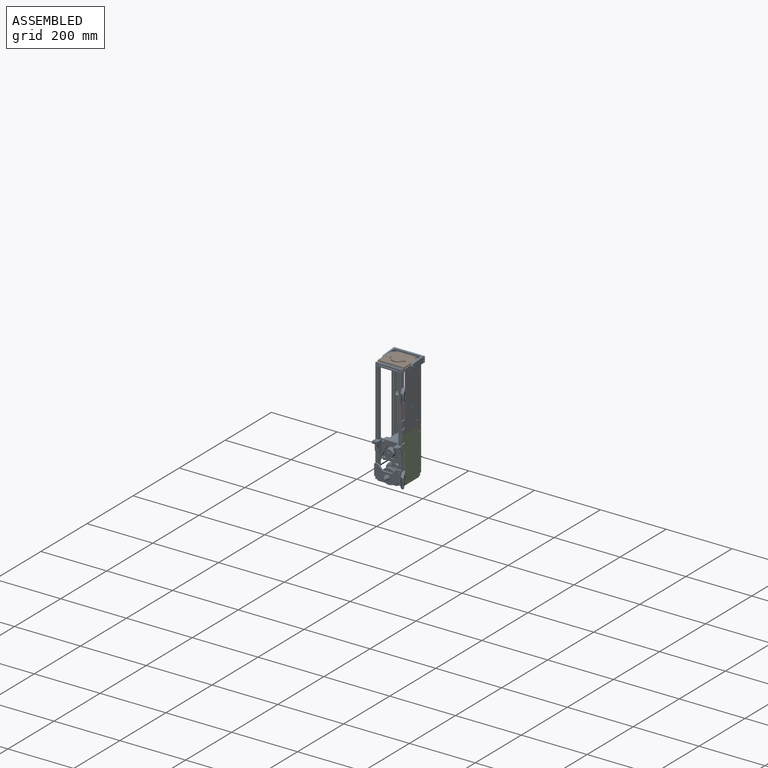
[diagram: assembled view]
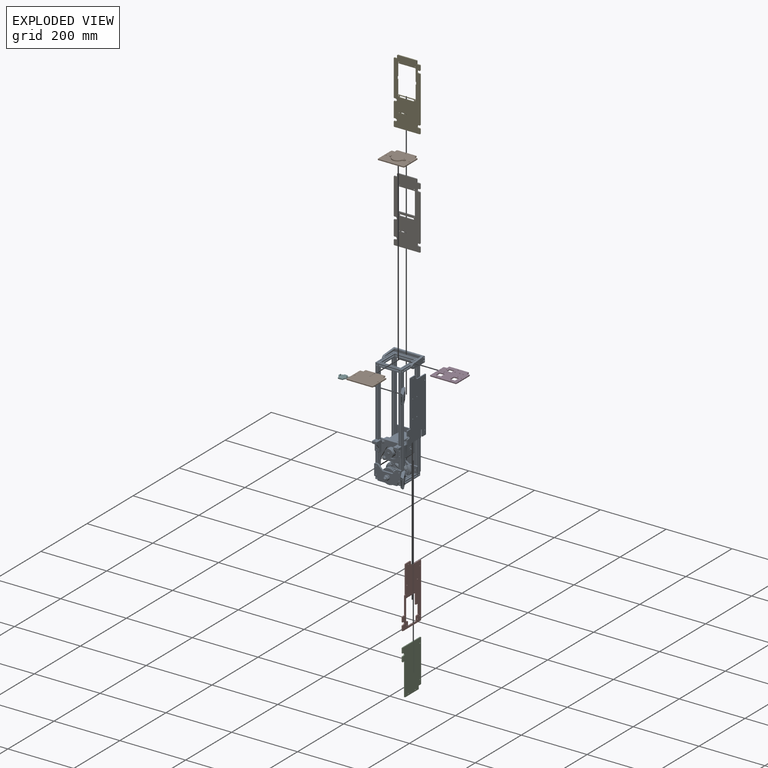
[diagram: exploded view]
GUIDED TOUR — FREECAD ASSEMBLY "colonne-moteur"

This assembly has 10 components, labeled P0..P9 below (a component is one placed body or linked part; the same part can appear more than once), held together by 0 modeled joints plus 35 derived contact edges. A joint is a constraint between two components; its type names the relative motion it leaves free:
  CONTACT — a derived adjacency edge — the two components touch in the source model (clearance under 2% of the assembly's diagonal); it is measured from the geometry, not a modeled constraint.
Axis/direction vectors are unit vectors and 'through' points are millimeter coordinates, both in the assembly's world frame.

MATES
  1. CONTACT "contact_0_1": P0 <-> P1, contact direction (0.000, 0.000, 1.000) through (40.00, 7.00, 319.50) mm (derived from contact, not a modeled constraint)
  2. CONTACT "contact_0_2": P0 <-> P2, contact direction (0.000, 0.000, -1.000) through (40.00, -4.00, 140.00) mm (derived from contact, not a modeled constraint)
  3. CONTACT "contact_0_3": P0 <-> P3, contact direction (0.000, 0.000, 1.000) through (40.00, 7.00, 319.50) mm (derived from contact, not a modeled constraint)
  4. CONTACT "contact_0_4": P0 <-> P4, contact direction (-0.695, 0.712, -0.104) through (40.00, 74.50, 308.00) mm (derived from contact, not a modeled constraint)
  5. CONTACT "contact_0_6": P0 <-> P6, contact direction (-0.695, 0.712, -0.104) through (40.00, 74.50, 308.00) mm (derived from contact, not a modeled constraint)
  6. CONTACT "contact_0_7": P0 <-> P7, contact direction (1.000, 0.000, 0.000) through (40.00, -4.00, 156.00) mm (derived from contact, not a modeled constraint)
  7. CONTACT "contact_0_8": P0 <-> P8, contact direction (0.000, 0.000, -1.000) through (43.00, 37.58, 307.65) mm (derived from contact, not a modeled constraint)
  8. CONTACT "contact_0_9": P0 <-> P9, contact direction (0.000, 0.000, 1.000) through (40.00, 7.00, 319.50) mm (derived from contact, not a modeled constraint)
  9. CONTACT "contact_1_3": P1 <-> P3, contact direction (0.000, 0.000, 1.000) through (-39.00, 5.00, 320.00) mm (derived from contact, not a modeled constraint)
  10. CONTACT "contact_1_4": P1 <-> P4, contact direction (-1.000, 0.000, 0.000) through (-29.00, 75.00, 320.00) mm (derived from contact, not a modeled constraint)
  11. CONTACT "contact_1_6": P1 <-> P6, contact direction (-1.000, 0.000, 0.000) through (-29.00, 75.00, 320.00) mm (derived from contact, not a modeled constraint)
  12. CONTACT "contact_1_7": P1 <-> P7, contact direction (0.000, 0.000, -1.000) through (40.00, 7.00, 319.50) mm (derived from contact, not a modeled constraint)
  13. CONTACT "contact_1_8": P1 <-> P8, contact direction (0.000, 0.000, -1.000) through (-30.00, 72.88, 318.72) mm (derived from contact, not a modeled constraint)
  14. CONTACT "contact_1_9": P1 <-> P9, contact direction (0.000, 0.000, 1.000) through (-39.00, 5.00, 320.00) mm (derived from contact, not a modeled constraint)
  15. CONTACT "contact_2_4": P2 <-> P4, contact direction (0.000, 0.000, 1.000) through (39.50, 75.00, 137.50) mm (derived from contact, not a modeled constraint)
  16. CONTACT "contact_2_6": P2 <-> P6, contact direction (0.000, 0.000, 1.000) through (39.50, 75.00, 137.50) mm (derived from contact, not a modeled constraint)
  17. CONTACT "contact_2_7": P2 <-> P7, contact direction (0.000, 0.000, 1.000) through (43.00, 74.00, 140.00) mm (derived from contact, not a modeled constraint)
  18. CONTACT "contact_2_8": P2 <-> P8, contact direction (-1.000, 0.000, 0.000) through (40.00, 72.75, 10.00) mm (derived from contact, not a modeled constraint)
  19. CONTACT "contact_3_4": P3 <-> P4, contact direction (-1.000, 0.000, 0.000) through (-29.00, 75.00, 320.00) mm (derived from contact, not a modeled constraint)
  20. CONTACT "contact_3_6": P3 <-> P6, contact direction (-1.000, 0.000, 0.000) through (-29.00, 75.00, 320.00) mm (derived from contact, not a modeled constraint)
  21. CONTACT "contact_3_7": P3 <-> P7, contact direction (0.000, 0.000, -1.000) through (40.00, 7.00, 319.50) mm (derived from contact, not a modeled constraint)
  22. CONTACT "contact_3_8": P3 <-> P8, contact direction (0.000, 0.000, -1.000) through (-30.00, 72.88, 318.72) mm (derived from contact, not a modeled constraint)
  23. CONTACT "contact_3_9": P3 <-> P9, contact direction (0.000, 0.000, 1.000) through (-39.00, 5.00, 320.00) mm (derived from contact, not a modeled constraint)
  24. CONTACT "contact_4_5": P4 <-> P5, contact direction (-0.707, -0.702, -0.082) through (-28.45, 74.80, 211.45) mm (derived from contact, not a modeled constraint)
  25. CONTACT "contact_4_6": P4 <-> P6, contact direction (0.000, 1.000, 0.000) through (30.00, 75.00, 310.00) mm (derived from contact, not a modeled constraint)
  26. CONTACT "contact_4_7": P4 <-> P7, contact direction (0.695, -0.712, 0.104) through (40.00, 74.50, 308.00) mm (derived from contact, not a modeled constraint)
  27. CONTACT "contact_4_8": P4 <-> P8, contact direction (0.000, 0.000, -1.000) through (-30.00, 73.38, 318.22) mm (derived from contact, not a modeled constraint)
  28. CONTACT "contact_4_9": P4 <-> P9, contact direction (1.000, 0.000, 0.000) through (-29.00, 75.00, 320.00) mm (derived from contact, not a modeled constraint)
  29. CONTACT "contact_5_6": P5 <-> P6, contact direction (0.707, 0.702, 0.082) through (-21.74, 75.00, 211.51) mm (derived from contact, not a modeled constraint)
  30. CONTACT "contact_6_7": P6 <-> P7, contact direction (0.695, -0.712, 0.104) through (40.00, 74.50, 308.00) mm (derived from contact, not a modeled constraint)
  31. CONTACT "contact_6_8": P6 <-> P8, contact direction (0.000, 0.000, -1.000) through (-30.00, 73.38, 318.22) mm (derived from contact, not a modeled constraint)
  32. CONTACT "contact_6_9": P6 <-> P9, contact direction (1.000, 0.000, 0.000) through (-29.00, 75.00, 320.00) mm (derived from contact, not a modeled constraint)
  33. CONTACT "contact_7_8": P7 <-> P8, contact direction (0.000, 0.000, -1.000) through (43.00, 37.58, 307.65) mm (derived from contact, not a modeled constraint)
  34. CONTACT "contact_7_9": P7 <-> P9, contact direction (0.000, 0.000, 1.000) through (40.00, 7.00, 319.50) mm (derived from contact, not a modeled constraint)
  35. CONTACT "contact_8_9": P8 <-> P9, contact direction (0.000, 0.000, 1.000) through (-30.00, 72.88, 318.72) mm (derived from contact, not a modeled constraint)

ASSEMBLY ORDER
  1. P8 — the base component [order verified]
  2. P2 [order verified]
  3. P4 [order verified]
  4. P6 [order verified]
  5. P7 [order verified]
  6. P0 [order verified]
  7. P3 [order verified]
  8. P1 [order verified]
  9. P5 [order verified]
  10. P9 [order verified]
Order-tag legend:
  [order verified] — this step's position reverses a verified removal order: the component was checked to insert without passing through the ones already placed.

Of the 10 components, 10 carry a construction recipe — the FreeCAD feature program (sketches with constraints, then the solid features that consume them) that regenerates the part from scratch, quoted from this document or from the linked companion document it references; the rest are supplied as boundary geometry only. The tour below walks the components in assembly order: each is shown spotlighted twice — in the assembled view, then in the exploded view, where a leader line traces a displaced component back to its assembled socket (components that stay in place when exploded have no leader line; saturated green if recipe-attached, orange if geometry-only; every other component desaturated gray) — followed by its recipe or geometry summary and the mates that hold it.
NOTE — document 2 of 2 of this assembly tour. The two overview renders and the header above are repeated from document 1; the component sections below continue where the previous document stopped.
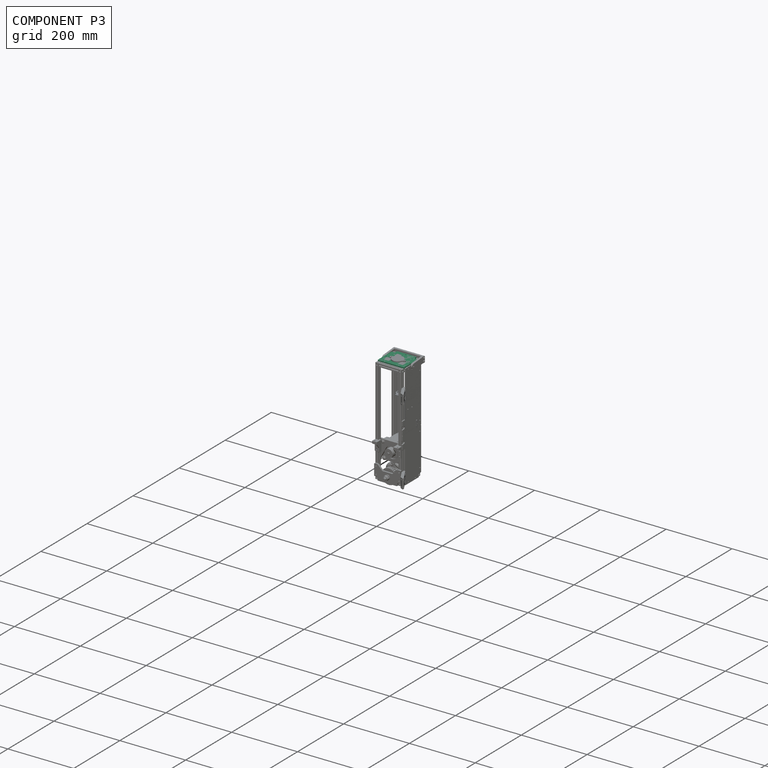
[diagram: component P3 — assembled]
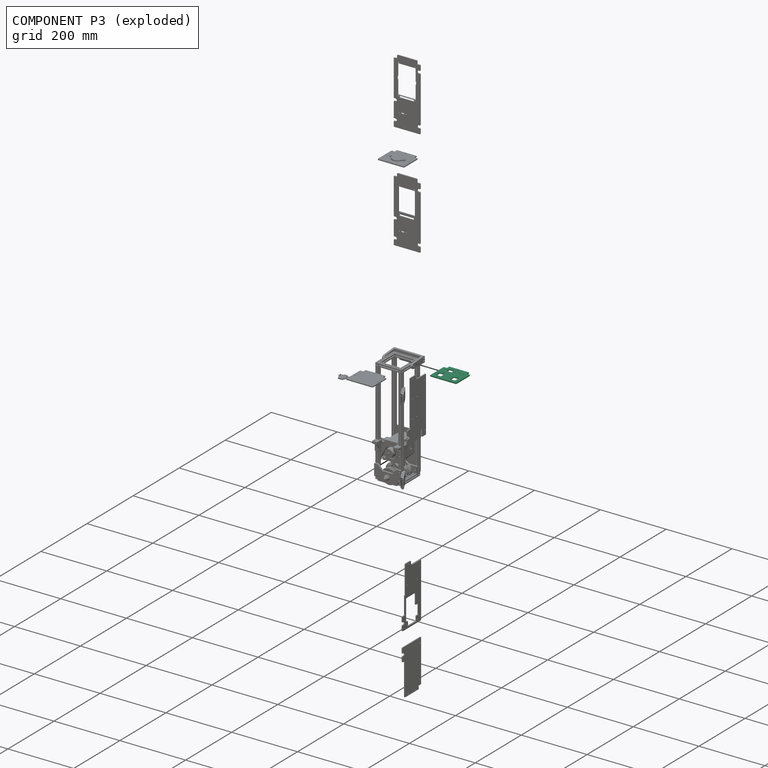
[diagram: component P3 — exploded]
COMPONENT P3 — recipe-attached ("CarterTopUsb", modeled in this document).
Held by: resting contact with P0 (derived edge); resting contact with P1 (derived edge); resting contact with P4 (derived edge); resting contact with P6 (derived edge); resting contact with P7 (derived edge); resting contact with P8 (derived edge); resting contact with P9 (derived edge).
Construction recipe (the document's own serialized feature program — sketch geometry with constraints, then the solid features built on it; lengths are millimeters unless a unit is written):

FEATURE [PartDesign::FeatureBase] Clone
  BaseFeature = -> Body072
  InvalidShape = false
  NewSolid = false
  Placement = pos=(0,35,320) rot=(0,0,1;0rad)
  Suppress = false
  TreeRank = 38
  ValidateShape = true
FEATURE [Sketcher::SketchObject] Sketch154
  ArcFitTolerance = 0
  AttachmentSupport = -> [Clone]
  ExternalBSplineMaxDegree = 0
  ExternalBSplineTolerance = 0
  ExternalGeometry = -> [Clone]
  FullyConstrained = true
  InternalTolerance = 1e-06
  InvalidShape = false
  MakeInternals = false
  MapMode = 5
  Placement = pos=(0,35,323) rot=(0,0,1;0rad)
  Support = -> [Clone]
  TreeRank = 40
  ValidateShape = true
  sketch-geometry (7):
    g0: Circle CenterX=-21.5 CenterY=-26 CenterZ=0 NormalX=0 NormalY=0 NormalZ=1 AngleXU=0 Radius=1.6
    g1: Circle CenterX=-21.5 CenterY=4 CenterZ=0 NormalX=0 NormalY=0 NormalZ=1 AngleXU=0 Radius=1.6
    g2: LineSegment StartX=-14 StartY=-2.5 StartZ=0 EndX=-14 EndY=-19.5 EndZ=0
    g3: LineSegment StartX=-14 StartY=-19.5 StartZ=0 EndX=-29 EndY=-19.5 EndZ=0
    g4: LineSegment StartX=-29 StartY=-19.5 StartZ=0 EndX=-29 EndY=-2.5 EndZ=0
    g5: LineSegment StartX=-29 StartY=-2.5 StartZ=0 EndX=-14 EndY=-2.5 EndZ=0
    g6: GeomPoint [constr] X=-21.5 Y=-11 Z=0
  constraints (18):
    c: DistanceY(g0,g1) = 30
    c: Equal(g0,g1)
    c: Diameter(g0) = 3.2
    c: Coincident(g2,g3)
    c: Coincident(g3,g4)
    c: Coincident(g4,g5)
    c: Coincident(g5,g2)
    c: Horizontal(g3)
    c: Horizontal(g5)
    c: Vertical(g2)
    c: Vertical(g4)
    c: Symmetric(g3,g2,g6)
    c: Symmetric(g1,g0,g6)
    c: DistanceX(g3,g3) = 15
    c: DistanceY(g2,g2) = 17
    c: DistanceX(g-3,g3) = 11
    c: Vertical(g1,g0)
    c: DistanceY(g6,g-1) = 11
FEATURE [PartDesign::Pocket] Pocket
  AddSubType = 1
  AutoTaperInnerAngle = false
  BaseFeature = -> Clone
  CheckUpToFaceLimits = true
  ClaimChildren = false
  Fit = 0
  FitJoin = 0
  InnerFit = 0
  InnerFitJoin = 0
  InvalidShape = false
  Length = 5
  Length2 = 100
  Linearize = true
  NewSolid = false
  Placement = pos=(0,35,320) rot=(0,0,1;0rad)
  Profile = -> Sketch154
  Refine = true
  Suppress = false
  TaperInnerAngle = 0
  TaperInnerAngleRev = 0
  TreeRank = 41
  Type = 1
  ValidateShape = true
  _ProfileBasedVersion = 1
  _Version = 1
FEATURE [PartDesign::Mirrored] Mirrored
  AddSubType = 0
  BaseFeature = -> Pocket
  CopyShape = false
  InvalidShape = false
  MirrorPlane = -> Sketch154 [V_Axis]
  NewSolid = false
  OriginalSubs = -> [Pocket]
  Originals = -> [Pocket]
  ParallelTransform = true
  Placement = pos=(0,35,320) rot=(0,0,1;0rad)
  Refine = true
  SubTransform = true
  Suppress = false
  TreeRank = 43
  ValidateShape = true
  _Version = 3
FEATURE [PartDesign::Chamfer] Chamfer057
  AddSubType = 0
  Angle = 45
  Base = -> Mirrored [Edge83,Edge84,Edge82,Edge81,Edge77,Edge76,Edge75,Edge74]
  BaseFeature = -> Mirrored
  ChamferType = 0
  FlipDirection = false
  InvalidShape = false
  NewSolid = false
  Placement = pos=(0,35,320) rot=(0,0,1;0rad)
  Refine = true
  Size = 1
  Size2 = 1
  SupportTransform = false
  Suppress = false
  TreeRank = 44
  ValidateShape = true
FEATURE [Sketcher::SketchObject] Sketch178
  ArcFitTolerance = 1e-06
  AttachmentSupport = -> [Chamfer057]
  ExternalBSplineMaxDegree = 0
  ExternalBSplineTolerance = 0
  FullyConstrained = false
  InternalTolerance = 1e-06
  InvalidShape = false
  MakeInternals = false
  MapMode = 5
  Placement = pos=(0,35,323) rot=(0,0,1;0rad)
  Support = -> [Chamfer057]
  TreeRank = 329
  ValidateShape = true
  sketch-geometry (15):
    g0: LineSegment [constr] StartX=-25 StartY=21.16 StartZ=0 EndX=25 EndY=21.16 EndZ=0
    g1: Circle CenterX=-25 CenterY=21.16 CenterZ=0 NormalX=0 NormalY=0 NormalZ=1 AngleXU=0 Radius=1.6
    g2: Circle CenterX=25 CenterY=21.16 CenterZ=0 NormalX=0 NormalY=0 NormalZ=1 AngleXU=0 Radius=1.6
    g3: Circle CenterX=15 CenterY=21.16 CenterZ=0 NormalX=0 NormalY=0 NormalZ=1 AngleXU=0 Radius=1.6
    g4: Circle CenterX=1 CenterY=21.16 CenterZ=0 NormalX=0 NormalY=0 NormalZ=1 AngleXU=0 Radius=1.6
    g5: ArcOfCircle CenterX=-18.4914 CenterY=25.5064 CenterZ=0 NormalX=0 NormalY=0 NormalZ=1 AngleXU=0 Radius=2 StartAngle=1.5708 EndAngle=3.14159
    g6: LineSegment StartX=-18.4914 StartY=27.5064 StartZ=0 EndX=-8.10547 EndY=27.5064 EndZ=0
    g7: ArcOfCircle CenterX=-8.10547 CenterY=25.5064 CenterZ=0 NormalX=0 NormalY=0 NormalZ=1 AngleXU=0 Radius=2 StartAngle=9e-16 EndAngle=1.5708
    g8: LineSegment StartX=-6.10547 StartY=25.5064 StartZ=0 EndX=-6.10547 EndY=16.8136 EndZ=0
    g9: ArcOfCircle CenterX=-8.10547 CenterY=16.8136 CenterZ=0 NormalX=0 NormalY=0 NormalZ=1 AngleXU=0 Radius=2 StartAngle=4.71239 EndAngle=6.28319
    g10: LineSegment StartX=-8.10547 StartY=14.8136 StartZ=0 EndX=-18.4914 EndY=14.8136 EndZ=0
    g11: ArcOfCircle CenterX=-18.4914 CenterY=16.8136 CenterZ=0 NormalX=0 NormalY=0 NormalZ=1 AngleXU=0 Radius=2 StartAngle=3.14159 EndAngle=4.71239
    g12: LineSegment StartX=-20.4914 StartY=16.8136 StartZ=0 EndX=-20.4914 EndY=25.5064 EndZ=0
    g13: GeomPoint [constr] X=-20.4914 Y=27.5064 Z=0
    g14: GeomPoint [constr] X=-6.10547 Y=14.8136 Z=0
  constraints (33):
    c: Symmetric(g0,g0,g-2)
    c: DistanceX(g0,g0) = 50
    c: Coincident(g1,g0)
    c: Coincident(g2,g0)
    c: PointOnObject(g3,g0)
    c: PointOnObject(g4,g0)
    c: Equal(g4,g3)
    c: Equal(g4,g2)
    c: Equal(g4,g1)
    c: Diameter(g4) = 3.2
    c: DistanceY(g-1,g2) = 21.16
    c: DistanceX(g4,g3) = 14
    c: DistanceX(g3,g2) = 10
    c: Tangent(g5,g6) = 1.5708
    c: Tangent(g6,g7) = 1.5708
    c: Tangent(g7,g8) = 1.5708
    c: Tangent(g8,g9) = 1.5708
    c: Tangent(g9,g10) = 1.5708
    c: Tangent(g10,g11) = 1.5708
    c: Tangent(g11,g12) = 1.5708
    c: Tangent(g12,g5) = 1.5708
    c: Horizontal(g6)
    c: Horizontal(g10)
    c: Vertical(g8)
    c: Vertical(g12)
    c: Equal(g5,g7)
    c: Equal(g7,g9)
    c: PointOnObject(g13,g6)
    c: PointOnObject(g13,g12)
    c: PointOnObject(g14,g8)
    c: PointOnObject(g14,g10)
    c: Symmetric(g5,g11,g0)
    c: Radius(g5) = 2
FEATURE [PartDesign::Pocket] Pocket024
  AddSubType = 1
  AutoTaperInnerAngle = false
  BaseFeature = -> Chamfer057
  CheckUpToFaceLimits = true
  ClaimChildren = false
  Fit = 0
  FitJoin = 0
  InnerFit = 0
  InnerFitJoin = 0
  InvalidShape = false
  Length = 5
  Length2 = 100
  Linearize = true
  NewSolid = false
  Placement = pos=(0,35,320) rot=(0,0,1;0rad)
  Profile = -> Sketch178
  Refine = true
  Suppress = false
  TaperInnerAngle = 0
  TaperInnerAngleRev = 0
  TreeRank = 330
  Type = 1
  ValidateShape = true
  _ProfileBasedVersion = 1
  _Version = 1
FEATURE [PartDesign::Body] Body074  label="CarterTopUsb"
  AutoGroupSolids = false
  BaseFeature = -> Body072
  ClaimAllChildren = false
  ExportMode = 0
  Group = -> [Clone,Sketch154,Pocket,Mirrored,Chamfer057,Sketch178,Pocket024]
  InvalidShape = false
  Origin = -> Origin159
  SingleSolid = true
  Tip = -> Pocket024
  TreeRank = 39
  ValidateShape = true
  _ExportChildren = -> [Clone,Pocket,Mirrored,Chamfer057,Pocket024]
  _GroupVersion = 1
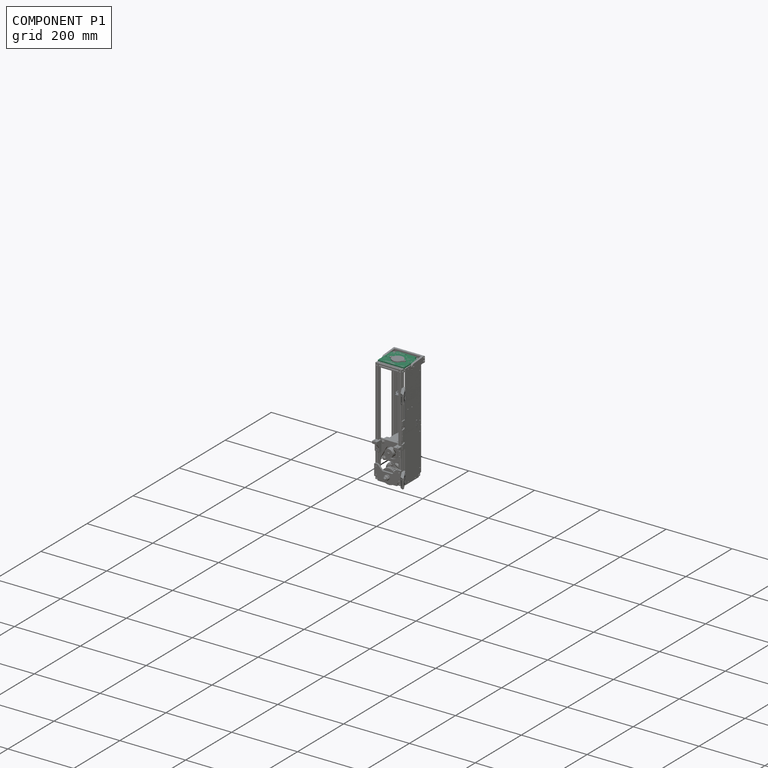
[diagram: component P1 — assembled]
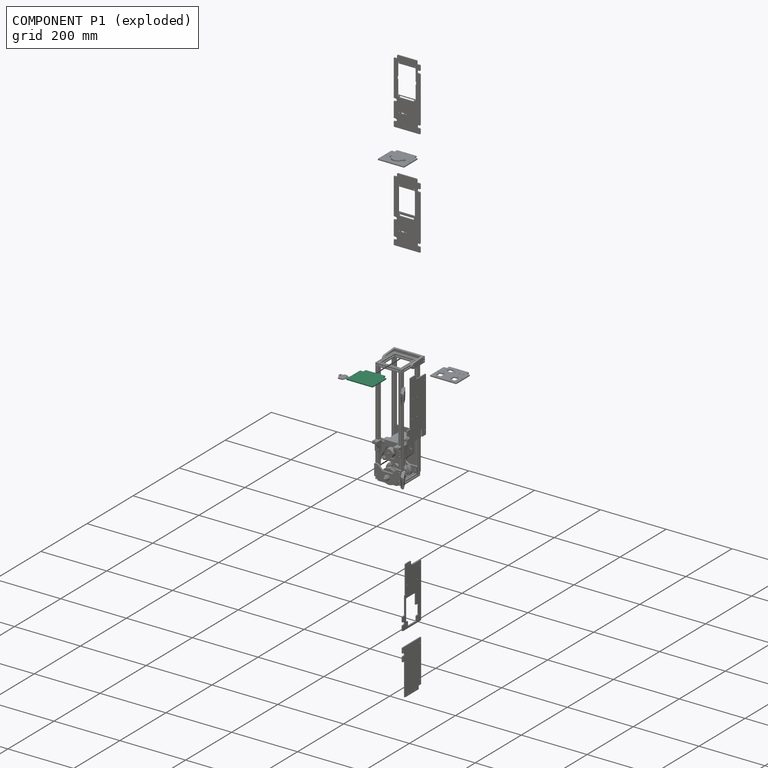
[diagram: component P1 — exploded]
COMPONENT P1 — recipe-attached ("CarterTop", modeled in this document).
Held by: resting contact with P0 (derived edge); resting contact with P3 (derived edge); resting contact with P4 (derived edge); resting contact with P6 (derived edge); resting contact with P7 (derived edge); resting contact with P8 (derived edge); resting contact with P9 (derived edge).
Construction recipe (the document's own serialized feature program — sketch geometry with constraints, then the solid features built on it; lengths are millimeters unless a unit is written):

FEATURE [Sketcher::SketchObject] Sketch152
  ArcFitTolerance = 0
  AttachmentSupport = -> [XY_Plane089]
  ExternalBSplineMaxDegree = 0
  ExternalBSplineTolerance = 0
  FullyConstrained = true
  InternalTolerance = 1e-06
  InvalidShape = false
  MakeInternals = false
  MapMode = 5
  Support = -> [XY_Plane089]
  TreeRank = 0
  ValidateShape = true
  sketch-geometry (11):
    g0: LineSegment StartX=40 StartY=-30 StartZ=0 EndX=-40 EndY=-30 EndZ=0
    g1: LineSegment StartX=-40 StartY=-30 StartZ=0 EndX=-40 EndY=30 EndZ=0
    g2: LineSegment StartX=-40 StartY=30 StartZ=0 EndX=-30 EndY=30 EndZ=0
    g3: LineSegment StartX=-30 StartY=30 StartZ=0 EndX=-30 EndY=40 EndZ=0
    g4: LineSegment StartX=-30 StartY=40 StartZ=0 EndX=30 EndY=40 EndZ=0
    g5: LineSegment StartX=30 StartY=40 StartZ=0 EndX=30 EndY=30 EndZ=0
    g6: LineSegment StartX=30 StartY=30 StartZ=0 EndX=40 EndY=30 EndZ=0
    g7: LineSegment StartX=40 StartY=30 StartZ=0 EndX=40 EndY=-30 EndZ=0
    g8: Circle CenterX=0 CenterY=35 CenterZ=0 NormalX=0 NormalY=0 NormalZ=1 AngleXU=0 Radius=1.7
    g9: Circle CenterX=-35 CenterY=0 CenterZ=0 NormalX=0 NormalY=0 NormalZ=1 AngleXU=0 Radius=1.7
    g10: Circle CenterX=35 CenterY=0 CenterZ=0 NormalX=0 NormalY=0 NormalZ=1 AngleXU=0 Radius=1.7
  constraints (30):
    c: Coincident(g0,g1)
    c: Coincident(g1,g2)
    c: Horizontal(g2)
    c: Coincident(g2,g3)
    c: Vertical(g3)
    c: Coincident(g3,g4)
    c: Horizontal(g4)
    c: Coincident(g4,g5)
    c: Vertical(g5)
    c: Coincident(g5,g6)
    c: Horizontal(g6)
    c: Coincident(g6,g7)
    c: Coincident(g7,g0)
    c: Vertical(g7)
    c: Symmetric(g0,g0,g-2)
    c: Symmetric(g1,g0,g-1)
    c: Equal(g2,g3)
    c: Equal(g3,g5)
    c: Equal(g5,g6)
    c: DistanceY(g1,g1) = 60
    c: DistanceX(g0,g0) = 80
    c: DistanceX(g2,g2) = 10
    c: PointOnObject(g8,g-2)
    c: PointOnObject(g9,g-1)
    c: Symmetric(g10,g9,g-1)
    c: DistanceX(g1,g9) = 5
    c: DistanceY(g8,g4) = 5
    c: Diameter(g8) = 3.4
    c: Equal(g8,g9)
    c: Equal(g8,g10)
FEATURE [PartDesign::Pad] Pad084
  AddSubType = 0
  AutoTaperInnerAngle = false
  CheckUpToFaceLimits = true
  ClaimChildren = false
  Direction = (1,1,1)
  Fit = 0
  FitJoin = 0
  InnerFit = 0
  InnerFitJoin = 0
  InvalidShape = false
  Length = 3
  Length2 = 100
  Linearize = true
  NewSolid = false
  Profile = -> Sketch152
  Refine = true
  Suppress = false
  TaperInnerAngle = 0
  TaperInnerAngleRev = 0
  TreeRank = 0
  Type = 0
  ValidateShape = true
  _ProfileBasedVersion = 1
FEATURE [PartDesign::Chamfer] Chamfer055
  AddSubType = 0
  Angle = 45
  Base = -> Pad084 [Edge20,Edge14,Edge11,Edge5,Edge2,Edge1]
  BaseFeature = -> Pad084
  ChamferType = 0
  FlipDirection = false
  InvalidShape = false
  NewSolid = false
  Refine = true
  Size = 1
  Size2 = 1
  SupportTransform = false
  Suppress = false
  TreeRank = 0
  ValidateShape = true
FEATURE [PartDesign::Body] Body072  label="CarterTop"
  AutoGroupSolids = false
  ClaimAllChildren = false
  ExportMode = 0
  Group = -> [Sketch152,Pad084,Chamfer055]
  InvalidShape = false
  Origin = -> Origin155
  Placement = pos=(0,35,320) rot=(0,0,1;0rad)
  SingleSolid = true
  Tip = -> Chamfer055
  TreeRank = 0
  ValidateShape = true
  _ExportChildren = -> [Pad084,Chamfer055]
  _GroupVersion = 1
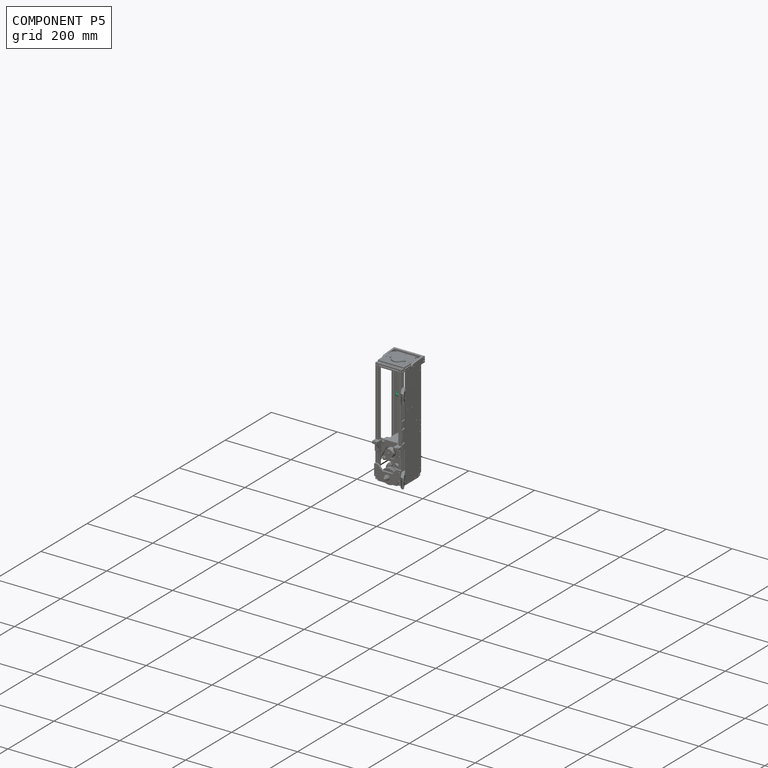
[diagram: component P5 — assembled]
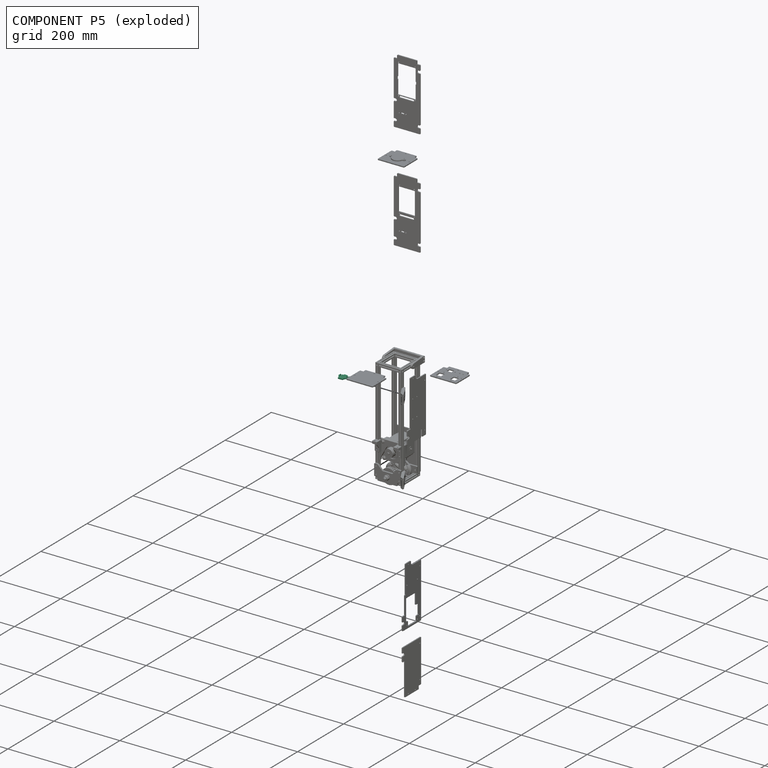
[diagram: component P5 — exploded]
COMPONENT P5 — recipe-attached ("DiffuseurLed", modeled in this document).
Held by: resting contact with P4 (derived edge); resting contact with P6 (derived edge).
Construction recipe (the document's own serialized feature program — sketch geometry with constraints, then the solid features built on it; lengths are millimeters unless a unit is written):

FEATURE [PartDesign::SubShapeBinder] Binder  label="Binder(Pocket026)"
  BindCopyOnChange = 0
  BindMode = 0
  ClaimChildren = false
  Context = -> Group001 [Body085.Binder.]
  EdgeTolerance = 1e-06
  FillStyle = 0
  Fuse = false
  InvalidShape = false
  MakeFace = true
  MergeEdges = true
  OffsetFill = false
  OffsetIntersection = false
  OffsetJoinType = 0
  OffsetOpenResult = false
  Outline = false
  PartialLoad = false
  Relative = true
  SplitEdges = false
  Support = -> [Body076[Pocket026.Face5]]
  TightBound = false
  TreeRank = 364
  ValidateShape = true
  _Version = 8
FEATURE [PartDesign::SubShapeBinder] Binder001  label="Binder001(Pocket026)"
  BindCopyOnChange = 0
  BindMode = 0
  ClaimChildren = false
  Context = -> Group001 [Body085.Binder001.]
  EdgeTolerance = 1e-06
  FillStyle = 0
  Fuse = false
  InvalidShape = false
  MakeFace = true
  MergeEdges = true
  OffsetFill = false
  OffsetIntersection = false
  OffsetJoinType = 0
  OffsetOpenResult = false
  Outline = false
  PartialLoad = false
  Relative = true
  SplitEdges = false
  Support = -> [Body076[Pocket026.Face60]]
  TightBound = false
  TreeRank = 365
  ValidateShape = true
  _Version = 8
FEATURE [Sketcher::SketchObject] Sketch181
  ArcFitTolerance = 1e-06
  AttachmentSupport = -> [Binder001]
  ExternalBSplineMaxDegree = 0
  ExternalBSplineTolerance = 0
  FullyConstrained = false
  InternalTolerance = 1e-06
  InvalidShape = false
  MakeInternals = false
  MapMode = 5
  Placement = pos=(0,4.7e-14,211.447) rot=(0,0,1;0rad)
  Support = -> [Binder001]
  TreeRank = 366
  ValidateShape = true
  sketch-geometry (35):
    g0: LineSegment StartX=-28.3715 StartY=75 StartZ=0 EndX=-25.1715 EndY=75 EndZ=0
    g1: LineSegment StartX=-18.5215 StartY=75 StartZ=0 EndX=-18.5215 EndY=78.5 EndZ=0
    g2: LineSegment StartX=-8.72148 StartY=78.5 StartZ=0 EndX=-8.72148 EndY=75 EndZ=0
    g3: LineSegment StartX=-8.72148 StartY=75 StartZ=0 EndX=-5.17148 EndY=75 EndZ=0
    g4: LineSegment StartX=1.12852 StartY=75 StartZ=0 EndX=1.12852 EndY=59 EndZ=0
    g5: LineSegment StartX=1.12852 StartY=59 StartZ=0 EndX=-28.3715 EndY=59 EndZ=0
    g6: LineSegment StartX=-28.3715 StartY=59 StartZ=0 EndX=-28.3715 EndY=75 EndZ=0
    g7: LineSegment StartX=-18.5215 StartY=78.5 StartZ=0 EndX=-8.72148 EndY=78.5 EndZ=0
    g8: LineSegment StartX=-22.0715 StartY=75 StartZ=0 EndX=-22.0715 EndY=71.2 EndZ=0
    g9: LineSegment StartX=-22.0715 StartY=66 StartZ=0 EndX=-25.1715 EndY=66 EndZ=0
    g10: LineSegment StartX=-25.1715 StartY=66 StartZ=0 EndX=-25.1715 EndY=69 EndZ=0
    g11: LineSegment StartX=-2.07148 StartY=75 StartZ=0 EndX=-2.07148 EndY=71.2 EndZ=0
    g12: LineSegment StartX=-2.07148 StartY=66 StartZ=0 EndX=-5.17148 EndY=66 EndZ=0
    g13: LineSegment StartX=-5.17148 StartY=66 StartZ=0 EndX=-5.17148 EndY=69 EndZ=0
    g14: LineSegment [constr] StartX=-3.62148 StartY=75 StartZ=0 EndX=-3.62148 EndY=66 EndZ=0
    g15: LineSegment [constr] StartX=-23.6215 StartY=66 StartZ=0 EndX=-23.6215 EndY=75 EndZ=0
    g16: LineSegment [constr] StartX=-13.6215 StartY=78.5 StartZ=0 EndX=-13.6215 EndY=59 EndZ=0
    g17: LineSegment StartX=-6.37148 StartY=71.2 StartZ=0 EndX=-5.17148 EndY=71.2 EndZ=0
    g18: LineSegment StartX=-0.87148 StartY=71.2 StartZ=0 EndX=-0.87148 EndY=69 EndZ=0
    g19: LineSegment StartX=-0.87148 StartY=69 StartZ=0 EndX=-2.07148 EndY=69 EndZ=0
    g20: LineSegment StartX=-6.37148 StartY=69 StartZ=0 EndX=-6.37148 EndY=71.2 EndZ=0
    g21: LineSegment StartX=-20.8715 StartY=71.2 StartZ=0 EndX=-20.8715 EndY=69 EndZ=0
    g22: LineSegment StartX=-20.8715 StartY=69 StartZ=0 EndX=-22.0715 EndY=69 EndZ=0
    g23: LineSegment StartX=-26.3715 StartY=69 StartZ=0 EndX=-26.3715 EndY=71.2 EndZ=0
    g24: LineSegment StartX=-22.0715 StartY=75 StartZ=0 EndX=-18.5215 EndY=75 EndZ=0
    g25: LineSegment StartX=-22.0715 StartY=71.2 StartZ=0 EndX=-20.8715 EndY=71.2 EndZ=0
    g26: LineSegment StartX=-26.3715 StartY=71.2 StartZ=0 EndX=-25.1715 EndY=71.2 EndZ=0
    g27: LineSegment StartX=-25.1715 StartY=69 StartZ=0 EndX=-26.3715 EndY=69 EndZ=0
    g28: LineSegment StartX=-25.1715 StartY=71.2 StartZ=0 EndX=-25.1715 EndY=75 EndZ=0
    g29: LineSegment StartX=-22.0715 StartY=69 StartZ=0 EndX=-22.0715 EndY=66 EndZ=0
    g30: LineSegment StartX=-2.07148 StartY=75 StartZ=0 EndX=1.12852 EndY=75 EndZ=0
    g31: LineSegment StartX=-2.07148 StartY=71.2 StartZ=0 EndX=-0.87148 EndY=71.2 EndZ=0
    g32: LineSegment StartX=-5.17148 StartY=69 StartZ=0 EndX=-6.37148 EndY=69 EndZ=0
    g33: LineSegment StartX=-5.17148 StartY=71.2 StartZ=0 EndX=-5.17148 EndY=75 EndZ=0
    g34: LineSegment StartX=-2.07148 StartY=69 StartZ=0 EndX=-2.07148 EndY=66 EndZ=0
  constraints (98):
    c: Horizontal(g0)
    c: Coincident(g24,g1)
    c: Vertical(g1)
    c: Vertical(g2)
    c: Coincident(g2,g3)
    c: Horizontal(g3)
    c: Coincident(g30,g4)
    c: Vertical(g4)
    c: Coincident(g4,g5)
    c: Horizontal(g5)
    c: Coincident(g5,g6)
    c: Coincident(g6,g0)
    c: Vertical(g6)
    c: Equal(g1,g2)
    c: Equal(g6,g4)
    c: Coincident(g7,g1)
    c: Coincident(g7,g2)
    c: Coincident(g29,g9)
    c: Coincident(g9,g10)
    c: Horizontal(g9)
    c: Vertical(g8)
    c: Vertical(g10)
    c: Coincident(g34,g12)
    c: Coincident(g12,g13)
    c: Horizontal(g12)
    c: Vertical(g11)
    c: Vertical(g13)
    c: Vertical(g14)
    c: Vertical(g15)
    c: Symmetric(g9,g29,g15)
    c: Symmetric(g12,g34,g14)
    c: Equal(g12,g9)
    c: DistanceX(g15,g14) = 20
    c: Symmetric(g5,g4,g16)
    c: Symmetric(g15,g14,g16)
    c: DistanceX(g12,g12) = 3.1
    c: Coincident(g31,g18)
    c: Coincident(g18,g19)
    c: Coincident(g32,g20)
    c: Coincident(g20,g17)
    c: Horizontal(g19)
    c: Vertical(g18)
    c: Vertical(g20)
    c: Coincident(g25,g21)
    c: Coincident(g21,g22)
    c: Coincident(g27,g23)
    c: Horizontal(g22)
    c: Vertical(g21)
    c: Vertical(g23)
    c: Symmetric(g25,g23,g15)
    c: Symmetric(g17,g31,g14)
    c: DistanceX(g17,g31) = 5.5
    c: Equal(g21,g20)
    c: DistanceY(g20,g20) = 2.2
    c: Horizontal(g21,g32)
    c: DistanceY(g18,g11) = 6
    c: DistanceY(g34,g11) = 9
    c: DistanceX(g31,g30) = 2
    c: Horizontal(g7)
    c: Coincident(g26,g23)
    c: Horizontal(g26)
    c: Coincident(g10,g27)
    c: Coincident(g28,g26)
    c: Coincident(g8,g25)
    c: Coincident(g29,g22)
    c: Coincident(g13,g32)
    c: Coincident(g33,g17)
    c: Coincident(g11,g31)
    c: Coincident(g34,g19)
    c: Vertical(g28)
    c: Equal(g26,g25)
    c: Equal(g25,g22)
    c: Equal(g22,g27)
    c: Equal(g28,g8)
    c: Equal(g10,g29)
    c: Horizontal(g27)
    c: Coincident(g28,g0)
    c: Coincident(g8,g24)
    c: Horizontal(g25)
    c: Horizontal(g24)
    c: Horizontal(g8,g15)
    c: Horizontal(g31)
    c: Horizontal(g17)
    c: Horizontal(g32)
    c: Vertical(g17,g13)
    c: Vertical(g33)
    c: Vertical(g11,g19)
    c: Vertical(g34)
    c: Horizontal(g19,g13)
    c: Coincident(g11,g30)
    c: Coincident(g3,g33)
    c: Horizontal(g30)
    c: Vertical(g16)
    c: Symmetric(g1,g2,g16)
    c: Equal(g22,g32)
    c: Equal(g29,g13)
    c: DistanceY(g2,g2) = 3.5
    c: DistanceY(g4,g4) = 16
FEATURE [PartDesign::Pad] Pad096
  AddSubType = 0
  AlongSketchNormal = false
  AutoTaperInnerAngle = false
  CheckUpToFaceLimits = true
  ClaimChildren = false
  Direction = (0,2e-16,1)
  Fit = 0
  FitJoin = 0
  InnerFit = 0
  InnerFitJoin = 0
  InvalidShape = false
  Length = 3
  Length2 = 100
  Linearize = true
  NewSolid = false
  Profile = -> Sketch181
  Refine = true
  Suppress = false
  TaperInnerAngle = 0
  TaperInnerAngleRev = 0
  TreeRank = 367
  Type = 0
  ValidateShape = true
  _ProfileBasedVersion = 1
FEATURE [PartDesign::Fillet] Fillet
  AddSubType = 0
  Base = -> Pad096 [Edge53,Edge56]
  BaseFeature = -> Pad096
  InvalidShape = false
  NewSolid = false
  Radius = 0.5
  Refine = true
  SupportTransform = false
  Suppress = false
  TreeRank = 368
  ValidateShape = true
FEATURE [PartDesign::Chamfer] Chamfer061
  AddSubType = 0
  Angle = 45
  Base = -> Fillet [Edge100,Edge98]
  BaseFeature = -> Fillet
  ChamferType = 0
  FlipDirection = false
  InvalidShape = false
  NewSolid = false
  Refine = true
  Size = 7
  Size2 = 1
  SupportTransform = false
  Suppress = false
  TreeRank = 369
  ValidateShape = true
FEATURE [PartDesign::Chamfer] Chamfer062
  AddSubType = 0
  Angle = 45
  Base = -> Chamfer061 [Edge38,Edge52,Edge56,Edge100,Edge86,Edge42]
  BaseFeature = -> Chamfer061
  ChamferType = 0
  FlipDirection = false
  InvalidShape = false
  NewSolid = false
  Refine = true
  Size = 0.4
  Size2 = 1
  SupportTransform = false
  Suppress = false
  TreeRank = 370
  ValidateShape = true
FEATURE [PartDesign::Pad] Pad097
  AddSubType = 0
  AlongSketchNormal = false
  AutoTaperInnerAngle = false
  BaseFeature = -> Chamfer062
  CheckUpToFaceLimits = true
  ClaimChildren = false
  Direction = (0,-1,2e-16)
  Fit = 0
  FitJoin = 0
  InnerFit = 0
  InnerFitJoin = 0
  InvalidShape = false
  Length = 6
  Length2 = 100
  Linearize = true
  NewSolid = false
  Profile = -> Chamfer062 [Face6]
  Refine = true
  Suppress = false
  TaperInnerAngle = 0
  TaperInnerAngleRev = 0
  TreeRank = 371
  Type = 0
  ValidateShape = true
  _ProfileBasedVersion = 1
FEATURE [PartDesign::Chamfer] Chamfer063
  AddSubType = 0
  Angle = 45
  Base = -> Pad097 [Edge130,Edge127]
  BaseFeature = -> Pad097
  ChamferType = 0
  FlipDirection = false
  InvalidShape = false
  NewSolid = false
  Refine = true
  Size = 1
  Size2 = 1
  SupportTransform = false
  Suppress = false
  TreeRank = 372
  ValidateShape = true
FEATURE [PartDesign::Fillet] Fillet065
  AddSubType = 0
  Base = -> Chamfer063 [Edge3,Edge52,Edge98,Edge100]
  BaseFeature = -> Chamfer063
  InvalidShape = false
  NewSolid = false
  Radius = 8
  Refine = true
  SupportTransform = false
  Suppress = false
  TreeRank = 373
  ValidateShape = true
FEATURE [PartDesign::Body] Body085  label="DiffuseurLed"
  AutoGroupSolids = false
  ClaimAllChildren = false
  ExportMode = 0
  Group = -> [Binder,Binder001,Sketch181,Pad096,Fillet,Chamfer061,Chamfer062,Pad097,Chamfer063,Fillet065]
  InvalidShape = false
  Origin = -> Origin173
  SingleSolid = true
  Tip = -> Fillet065
  TreeRank = 363
  ValidateShape = true
  _ExportChildren = -> [Binder,Binder001,Pad096,Fillet,Chamfer061,Chamfer062,Pad097,Chamfer063,Fillet065]
  _GroupVersion = 1
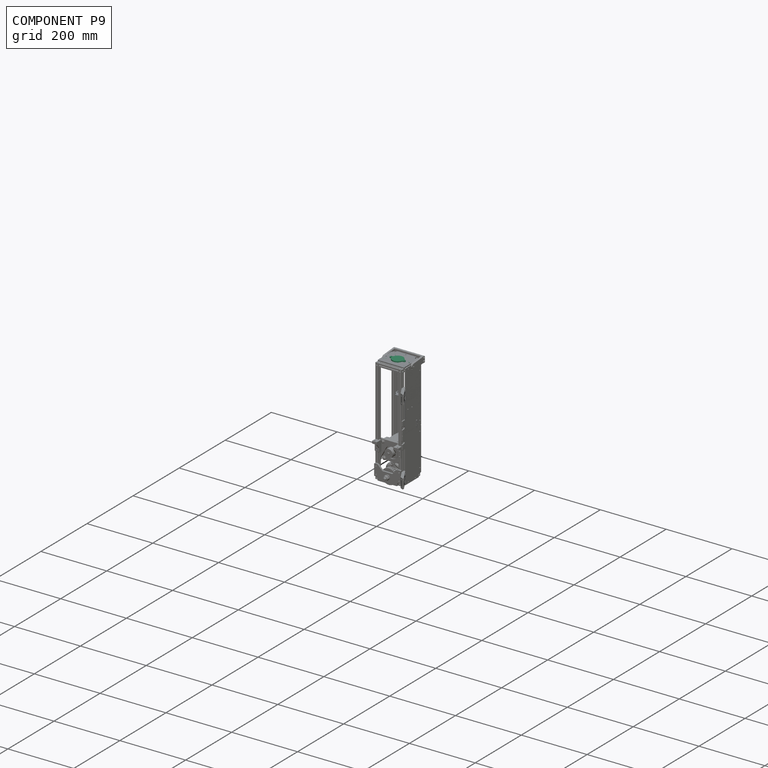
[diagram: component P9 — assembled]
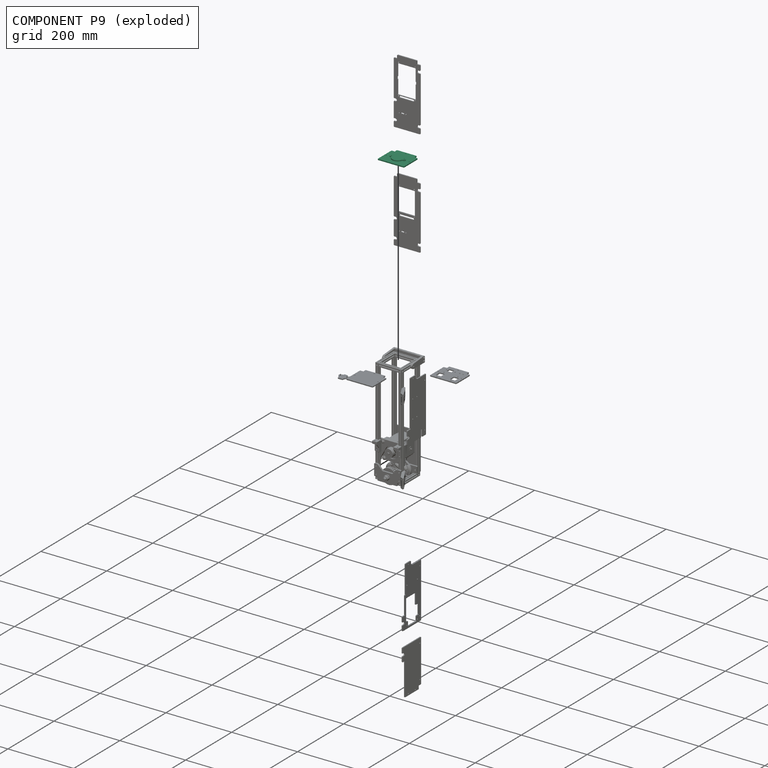
[diagram: component P9 — exploded]
COMPONENT P9 — recipe-attached ("EnsembleCarterEquipeLED", modeled in this document).
Held by: resting contact with P0 (derived edge); resting contact with P1 (derived edge); resting contact with P3 (derived edge); resting contact with P4 (derived edge); resting contact with P6 (derived edge); resting contact with P7 (derived edge); resting contact with P8 (derived edge).
Construction recipe (the document's own serialized feature program — sketch geometry with constraints, then the solid features built on it; lengths are millimeters unless a unit is written):

FEATURE [PartDesign::FeatureBase] Clone003
  BaseFeature = -> Body072
  InvalidShape = false
  NewSolid = false
  Placement = pos=(0,35,320) rot=(0,0,1;0rad)
  Suppress = false
  TreeRank = 277
  ValidateShape = true
FEATURE [Sketcher::SketchObject] Sketch175
  ArcFitTolerance = 0
  AttachmentSupport = -> [Clone003]
  ExternalBSplineMaxDegree = 0
  ExternalBSplineTolerance = 0
  FullyConstrained = true
  InternalTolerance = 1e-06
  InvalidShape = false
  MakeInternals = false
  MapMode = 5
  Placement = pos=(0,35,323) rot=(0,0,1;0rad)
  Support = -> [Clone003]
  TreeRank = 299
  ValidateShape = true
  sketch-geometry (4):
    g0: Circle CenterX=-5.13e-14 CenterY=0 CenterZ=0 NormalX=0 NormalY=0 NormalZ=1 AngleXU=0 Radius=12
    g1: Circle [constr] CenterX=-5.13e-14 CenterY=0 CenterZ=0 NormalX=0 NormalY=0 NormalZ=1 AngleXU=0 Radius=18
    g2: Circle CenterX=-19.6 CenterY=0 CenterZ=0 NormalX=0 NormalY=0 NormalZ=1 AngleXU=0 Radius=1.6
    g3: Circle CenterX=19.6 CenterY=0 CenterZ=0 NormalX=0 NormalY=0 NormalZ=1 AngleXU=0 Radius=1.6
  constraints (9):
    c: Coincident(g0,g-1)
    c: Diameter(g0) = 24
    c: Coincident(g1,g0)
    c: Diameter(g1) = 36
    c: PointOnObject(g2,g-1)
    c: Equal(g3,g2)
    c: Diameter(g3) = 3.2
    c: Symmetric(g2,g3,g0)
    c: Tangent(g3,g1)
FEATURE [PartDesign::Pocket] Pocket023
  AddSubType = 1
  AutoTaperInnerAngle = false
  BaseFeature = -> Clone003
  CheckUpToFaceLimits = true
  ClaimChildren = false
  Fit = 0
  FitJoin = 0
  InnerFit = 0
  InnerFitJoin = 0
  InvalidShape = false
  Length = 5
  Length2 = 100
  Linearize = true
  NewSolid = false
  Placement = pos=(0,35,320) rot=(0,0,1;0rad)
  Profile = -> Sketch175
  Refine = true
  Suppress = false
  TaperInnerAngle = 0
  TaperInnerAngleRev = 0
  TreeRank = 300
  Type = 1
  ValidateShape = true
  _ProfileBasedVersion = 1
  _Version = 1
FEATURE [PartDesign::Body] Body082  label="CarterTopLED"
  AutoGroupSolids = false
  BaseFeature = -> Body072
  ClaimAllChildren = false
  ExportMode = 0
  Group = -> [Clone003,Sketch175,Pocket023]
  InvalidShape = false
  Origin = -> Origin170
  SingleSolid = true
  Tip = -> Pocket023
  TreeRank = 278
  ValidateShape = true
  _ExportChildren = -> [Clone003,Pocket023]
  _GroupVersion = 1
FEATURE [Part::SubShapeBinder] Import001  label="Import001(Pocket023)"
  BindCopyOnChange = 0
  BindMode = 0
  ClaimChildren = false
  Context = -> Part009 [Body083.Import001.]
  EdgeTolerance = 1e-06
  FillStyle = 0
  Fuse = false
  InvalidShape = false
  MakeFace = false
  MergeEdges = true
  OffsetFill = false
  OffsetIntersection = false
  OffsetJoinType = 0
  OffsetOpenResult = false
  Outline = false
  PartialLoad = false
  Relative = true
  SplitEdges = false
  Support = -> [Body082[Pocket023.]]
  TightBound = false
  TreeRank = 301
  ValidateShape = true
  _Version = 8
FEATURE [Sketcher::SketchObject] Sketch176
  ArcFitTolerance = 0
  AttachmentSupport = -> [Import001]
  ExternalBSplineMaxDegree = 0
  ExternalBSplineTolerance = 0
  ExternalGeometry = -> [Import001]
  FullyConstrained = true
  InternalTolerance = 1e-06
  InvalidShape = false
  MakeInternals = false
  MapMode = 5
  Placement = pos=(0,0,323) rot=(0,0,1;0rad)
  Support = -> [Import001]
  TreeRank = 302
  ValidateShape = true
  sketch-geometry (8):
    g0: ArcOfCircle CenterX=-3.823e-12 CenterY=35 CenterZ=0 NormalX=0 NormalY=0 NormalZ=1 AngleXU=0 Radius=17 StartAngle=0.237521 EndAngle=2.90407
    g1: ArcOfCircle CenterX=-3.823e-12 CenterY=35 CenterZ=0 NormalX=0 NormalY=0 NormalZ=1 AngleXU=0 Radius=17 StartAngle=3.37911 EndAngle=6.04566
    g2: ArcOfCircle CenterX=-19.6 CenterY=35 CenterZ=0 NormalX=0 NormalY=0 NormalZ=1 AngleXU=0 Radius=4 StartAngle=1.5708 EndAngle=4.71239
    g3: ArcOfCircle CenterX=19.6 CenterY=35 CenterZ=0 NormalX=0 NormalY=0 NormalZ=1 AngleXU=0 Radius=4 StartAngle=4.71239 EndAngle=7.85398
    g4: LineSegment StartX=19.6 StartY=39 StartZ=0 EndX=16.5227 EndY=39 EndZ=0
    g5: LineSegment StartX=19.6 StartY=31 StartZ=0 EndX=16.5227 EndY=31 EndZ=0
    g6: LineSegment StartX=-16.5227 StartY=31 StartZ=0 EndX=-19.6 EndY=31 EndZ=0
    g7: LineSegment StartX=-16.5227 StartY=39 StartZ=0 EndX=-19.6 EndY=39 EndZ=0
  constraints (20):
    c: Coincident(g0,g-3)
    c: Coincident(g1,g0)
    c: Coincident(g2,g-4)
    c: Coincident(g3,g-5)
    c: Coincident(g4,g0)
    c: Coincident(g5,g1)
    c: Coincident(g6,g1)
    c: Coincident(g7,g0)
    c: Horizontal(g7)
    c: Horizontal(g6)
    c: Horizontal(g5)
    c: Horizontal(g4)
    c: Equal(g2,g3)
    c: Equal(g0,g1)
    c: Tangent(g7,g2) = -1.5708
    c: Tangent(g6,g2) = 1.5708
    c: Tangent(g5,g3) = 1.5708
    c: Tangent(g4,g3) = -1.5708
    c: Radius(g3) = 4
    c: Radius(g0) = 17
FEATURE [PartDesign::Pad] Pad094
  AddSubType = 0
  AlongSketchNormal = false
  AutoTaperInnerAngle = false
  CheckUpToFaceLimits = true
  ClaimChildren = false
  Direction = (0,0,1)
  Fit = 0
  FitJoin = 0
  InnerFit = 0
  InnerFitJoin = 0
  InvalidShape = false
  Length = 3
  Length2 = 100
  Linearize = true
  NewSolid = false
  Profile = -> Sketch176
  Refine = true
  Suppress = false
  TaperInnerAngle = 0
  TaperInnerAngleRev = 0
  TreeRank = 303
  Type = 0
  ValidateShape = true
  _ProfileBasedVersion = 1
FEATURE [PartDesign::Fillet] Fillet064
  AddSubType = 0
  Base = -> Pad094 [Edge20,Edge5,Edge8,Edge17]
  BaseFeature = -> Pad094
  InvalidShape = false
  NewSolid = false
  Radius = 3
  Refine = true
  SupportTransform = false
  Suppress = false
  TreeRank = 304
  ValidateShape = true
FEATURE [PartDesign::Body] Body083  label="SupLEDTransparent"
  AutoGroupSolids = false
  ClaimAllChildren = false
  ExportMode = 0
  Group = -> [Import001,Sketch176,Pad094,Fillet064]
  InvalidShape = false
  Origin = -> Origin171
  SingleSolid = true
  Tip = -> Fillet064
  TreeRank = 288
  ValidateShape = true
  _ExportChildren = -> [Import001,Pad094,Fillet064]
  _GroupVersion = 1
FEATURE [Part::SubShapeBinder] Import002  label="Import002(Pocket023)"
  BindCopyOnChange = 0
  BindMode = 0
  ClaimChildren = false
  Context = -> Part009 [Body084.Import002.]
  EdgeTolerance = 1e-06
  FillStyle = 0
  Fuse = false
  InvalidShape = false
  MakeFace = false
  MergeEdges = true
  OffsetFill = false
  OffsetIntersection = false
  OffsetJoinType = 0
  OffsetOpenResult = false
  Outline = false
  PartialLoad = false
  Relative = true
  SplitEdges = false
  Support = -> [Body082[Pocket023.]]
  TightBound = false
  TreeRank = 305
  ValidateShape = true
  _Version = 8
FEATURE [Sketcher::SketchObject] Sketch177
  ArcFitTolerance = 0
  AttachmentSupport = -> [Import002]
  ExternalBSplineMaxDegree = 0
  ExternalBSplineTolerance = 0
  ExternalGeometry = -> [Import002]
  FullyConstrained = true
  InternalTolerance = 1e-06
  InvalidShape = false
  MakeInternals = false
  MapMode = 5
  Placement = pos=(0,0,320) rot=(1,0,0;3.14159rad)
  Support = -> [Import002]
  TreeRank = 306
  ValidateShape = true
  sketch-geometry (6):
    g0: Circle CenterX=-19.6 CenterY=-35 CenterZ=0 NormalX=0 NormalY=0 NormalZ=1 AngleXU=0 Radius=2.05
    g1: Circle CenterX=19.6 CenterY=-35 CenterZ=0 NormalX=0 NormalY=0 NormalZ=1 AngleXU=0 Radius=2.05
    g2: ArcOfCircle CenterX=-19.6 CenterY=-35 CenterZ=0 NormalX=0 NormalY=0 NormalZ=1 AngleXU=0 Radius=4 StartAngle=2.14652 EndAngle=5.02364
    g3: ArcOfCircle CenterX=19.6 CenterY=-35 CenterZ=0 NormalX=0 NormalY=0 NormalZ=1 AngleXU=0 Radius=4 StartAngle=4.40114 EndAngle=7.27825
    g4: ArcOfCircle CenterX=-1.05611e-11 CenterY=-65.1967 CenterZ=0 NormalX=0 NormalY=0 NormalZ=1 AngleXU=0 Radius=40 StartAngle=0.99507 EndAngle=2.14652
    g5: ArcOfCircle CenterX=-4.87364e-11 CenterY=-95.9248 CenterZ=0 NormalX=0 NormalY=0 NormalZ=1 AngleXU=0 Radius=60 StartAngle=1.25955 EndAngle=1.88205
  constraints (14):
    c: Coincident(g0,g-4)
    c: Coincident(g1,g-5)
    c: Equal(g0,g1)
    c: Diameter(g0) = 4.1
    c: Coincident(g2,g0)
    c: Coincident(g3,g1)
    c: Equal(g2,g3)
    c: Radius(g2) = 4
    c: Tangent(g4,g2) = -1.5708
    c: Tangent(g4,g3) = -1.5708
    c: Tangent(g5,g2) = 1.5708
    c: Tangent(g5,g3) = 1.5708
    c: Radius(g4) = 40
    c: Radius(g5) = 60
FEATURE [PartDesign::Pad] Pad095
  AddSubType = 0
  AlongSketchNormal = false
  AutoTaperInnerAngle = false
  CheckUpToFaceLimits = true
  ClaimChildren = false
  Direction = (0,0,-1)
  Fit = 0
  FitJoin = 0
  InnerFit = 0
  InnerFitJoin = 0
  InvalidShape = false
  Length = 3
  Length2 = 100
  Linearize = true
  NewSolid = false
  Profile = -> Sketch177
  Refine = true
  Suppress = false
  TaperInnerAngle = 0
  TaperInnerAngleRev = 0
  TreeRank = 307
  Type = 0
  ValidateShape = true
  _ProfileBasedVersion = 1
FEATURE [PartDesign::Body] Body084  label="InfLEDSupport"
  AutoGroupSolids = false
  ClaimAllChildren = false
  ExportMode = 0
  Group = -> [Import002,Sketch177,Pad095]
  InvalidShape = false
  Origin = -> Origin172
  SingleSolid = true
  Tip = -> Pad095
  TreeRank = 298
  ValidateShape = true
  _ExportChildren = -> [Import002,Pad095]
  _GroupVersion = 1
PROVENANCE & LICENSES
Assembly and component geometry: a FreeCAD (.FCStd) document from a public repository crawl; components, placements and joints were extracted with FreeCAD and each solid tessellated.
Construction recipes: the document's own serialized feature recipes (and, for linked parts, the recipes of companion documents from the same project).
License: mit.
Joints: native FreeCAD joints and A2plus constraints are mapped to standard mate types; edges marked 'derived from contact' connect touching components and are measured from the geometry, not modeled.
Verification: 10 of this assembly's 10 components carry a construction recipe (10 from this document itself); the rest are geometry-only. Every component's tessellation passed the extraction mesh gates (mesh-volume checksum against the B-rep where available, bounding-box inflation <= 2%).
Renders: orthographic iso camera (az 35 / el 25); the floor grid conveys scale (grid pitch printed in each image; no ruler). In the exploded view each component is displaced by its stored offset vector: the offsets alone carry the explosion direction (mate normal/axis signs are not orientation cues and do not encode it), and separation distances are assigned per mate-chain, not proportionally to assembly-order depth.
